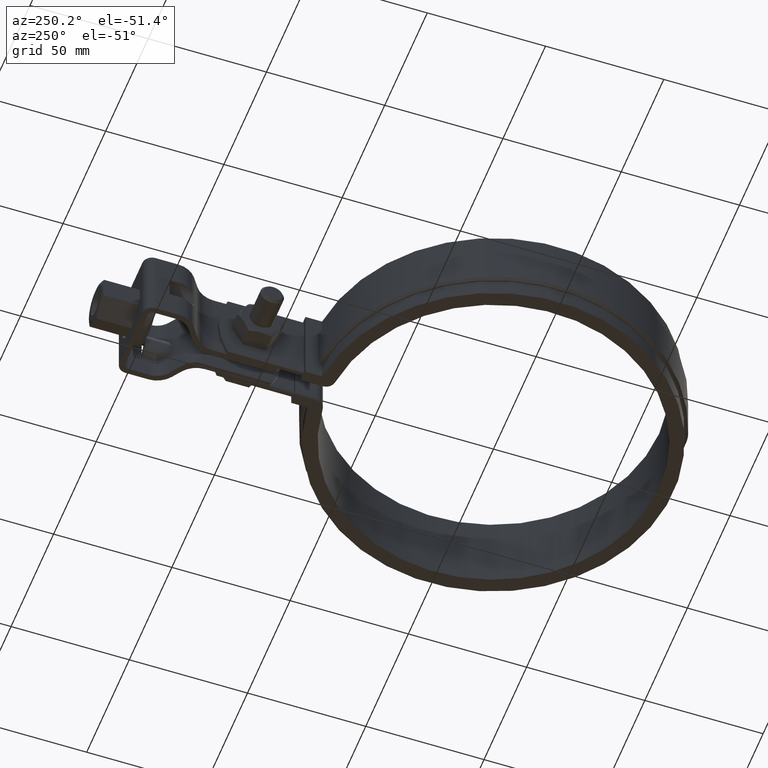
[diagram: clean part render]
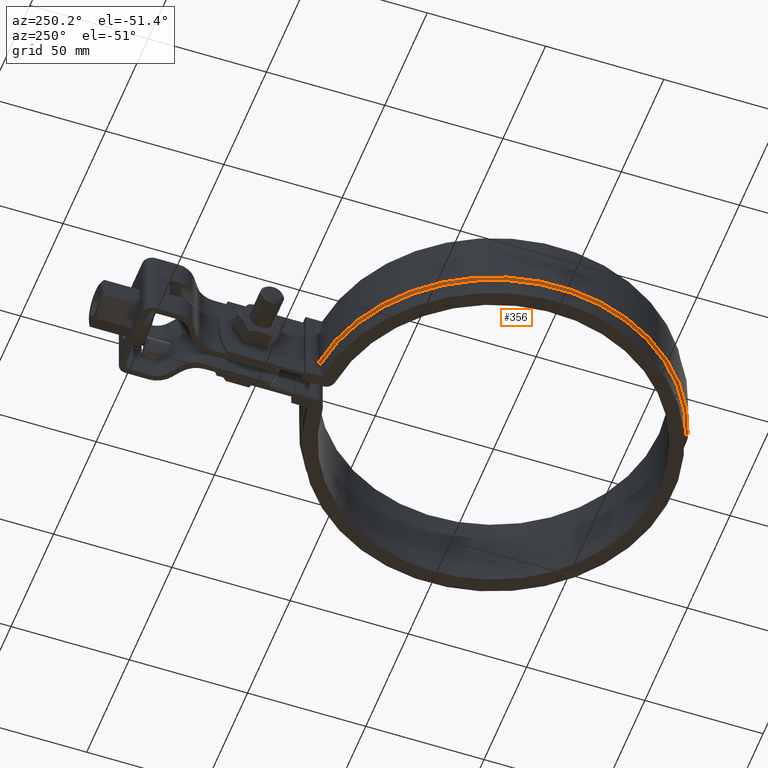
[diagram: same view with one face highlighted and labeled with its STEP entity id]
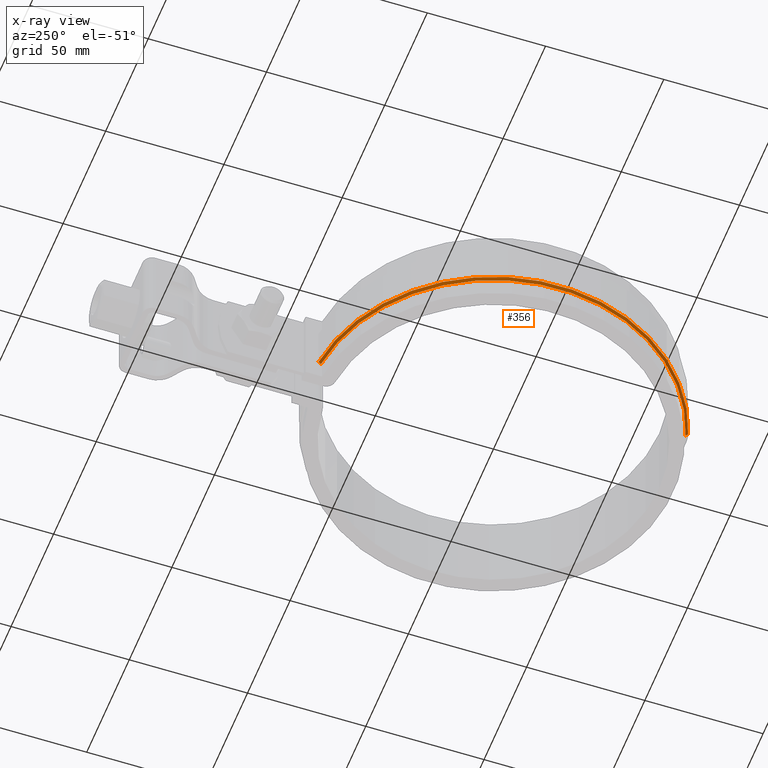
[diagram: x-ray of the same camera — body ghosted, the highlighted face saturated]
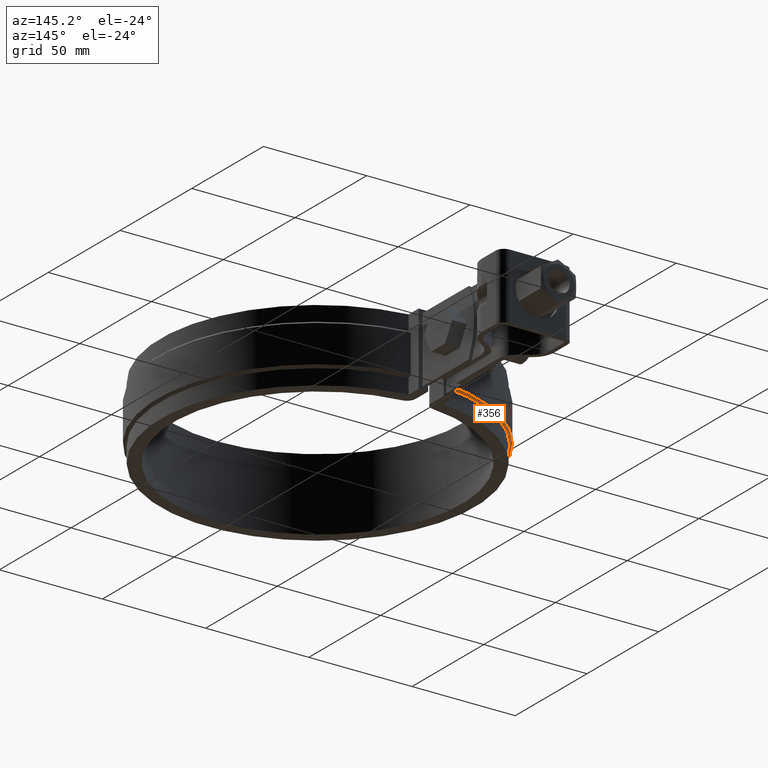
[diagram: same view with one face highlighted and labeled with its STEP entity id]
A machine part, auxiliary view. The second image highlights one B-rep face of the part: STEP entity #356.
The next image is the same camera in x-ray: the body ghosted, the highlighted face saturated — about 0% of this face is hidden behind the body in this view.
A second angle (auxiliary view) of the same face is appended — the face is thin or edge-on in the first view.
In plain terms, the highlighted conical surface has half-angle 45 deg.
Its self-contained STEP definition (entity closure, byte-faithful):
#356 = ADVANCED_FACE( '', ( #585 ), #586, .T. );
#585 = FACE_OUTER_BOUND( '', #1720, .T. );
#586 = CONICAL_SURFACE( '', #1721, 76.5000000000000, 0.785398163397441 );
#1720 = EDGE_LOOP( '', ( #3500, #3501, #3502, #3503 ) );
#1721 = AXIS2_PLACEMENT_3D( '', #3504, #3505, #3506 );
#3500 = ORIENTED_EDGE( '', *, *, #5091, .F. );
#3501 = ORIENTED_EDGE( '', *, *, #5117, .F. );
#3502 = ORIENTED_EDGE( '', *, *, #5118, .F. );
#3503 = ORIENTED_EDGE( '', *, *, #5119, .F. );
#3504 = CARTESIAN_POINT( '', ( 0.000000000000000, 0.000000000000000, -26.0000000000000 ) );
#3505 = DIRECTION( '', ( 0.000000000000000, 0.000000000000000, 1.00000000000000 ) );
#3506 = DIRECTION( '', ( 1.00000000000000, 0.000000000000000, 0.000000000000000 ) );
#5091 = EDGE_CURVE( '', #5653, #5656, #5657, .T. );
#5117 = EDGE_CURVE( '', #5704, #5653, #5705, .T. );
#5118 = EDGE_CURVE( '', #5706, #5704, #5707, .T. );
#5119 = EDGE_CURVE( '', #5656, #5706, #5708, .F. );
#5653 = VERTEX_POINT( '', #8172 );
#5656 = VERTEX_POINT( '', #8176 );
#5657 = B_SPLINE_CURVE_WITH_KNOTS( '', 3, ( #8177, #8178, #8179, #8180 ), .UNSPECIFIED., .F., .F., ( 4, 4 ), ( 0.000000000000000, 0.00141846560836217 ), .UNSPECIFIED. );
#5704 = VERTEX_POINT( '', #8252 );
#5705 = CIRCLE( '', #8253, 76.5000000000000 );
#5706 = VERTEX_POINT( '', #8254 );
#5707 = LINE( '', #8255, #8256 );
#5708 = CIRCLE( '', #8257, 77.5000000000000 );
#8172 = CARTESIAN_POINT( '', ( -8.40000000000000, 76.0374249958532, -26.0000000000000 ) );
#8176 = CARTESIAN_POINT( '', ( -8.40000000000000, 77.0434293110061, -25.0000000000000 ) );
#8177 = CARTESIAN_POINT( '', ( -8.40000000000000, 76.0374249958532, -26.0000000000000 ) );
#8178 = CARTESIAN_POINT( '', ( -8.40000000000000, 76.3727728881581, -25.6666798665536 ) );
#8179 = CARTESIAN_POINT( '', ( -8.40000000000000, 76.7081074900804, -25.3333463613797 ) );
#8180 = CARTESIAN_POINT( '', ( -8.40000000000000, 77.0434293110062, -25.0000000000000 ) );
#8252 = CARTESIAN_POINT( '', ( -23.4164987989239, -72.8280000000000, -26.0000000000000 ) );
#8253 = AXIS2_PLACEMENT_3D( '', #9455, #9456, #9457 );
#8254 = CARTESIAN_POINT( '', ( -23.7225968224392, -73.7800000000000, -25.0000000000000 ) );
#8255 = CARTESIAN_POINT( '', ( -23.7225968224392, -73.7800000000000, -25.0000000000000 ) );
#8256 = VECTOR( '', #9458, 1000.00000000000 );
#8257 = AXIS2_PLACEMENT_3D( '', #9459, #9460, #9461 );
#9455 = CARTESIAN_POINT( '', ( 0.000000000000000, 0.000000000000000, -26.0000000000000 ) );
#9456 = DIRECTION( '', ( 0.000000000000000, 0.000000000000000, -1.00000000000000 ) );
#9457 = DIRECTION( '', ( -1.00000000000000, 0.000000000000000, 0.000000000000000 ) );
#9458 = DIRECTION( '', ( 0.216443988135502, 0.673165655689590, -0.707106781186549 ) );
#9459 = CARTESIAN_POINT( '', ( 0.000000000000000, 0.000000000000000, -25.0000000000000 ) );
#9460 = DIRECTION( '', ( 0.000000000000000, 0.000000000000000, -1.00000000000000 ) );
#9461 = DIRECTION( '', ( -1.00000000000000, 0.000000000000000, 0.000000000000000 ) );